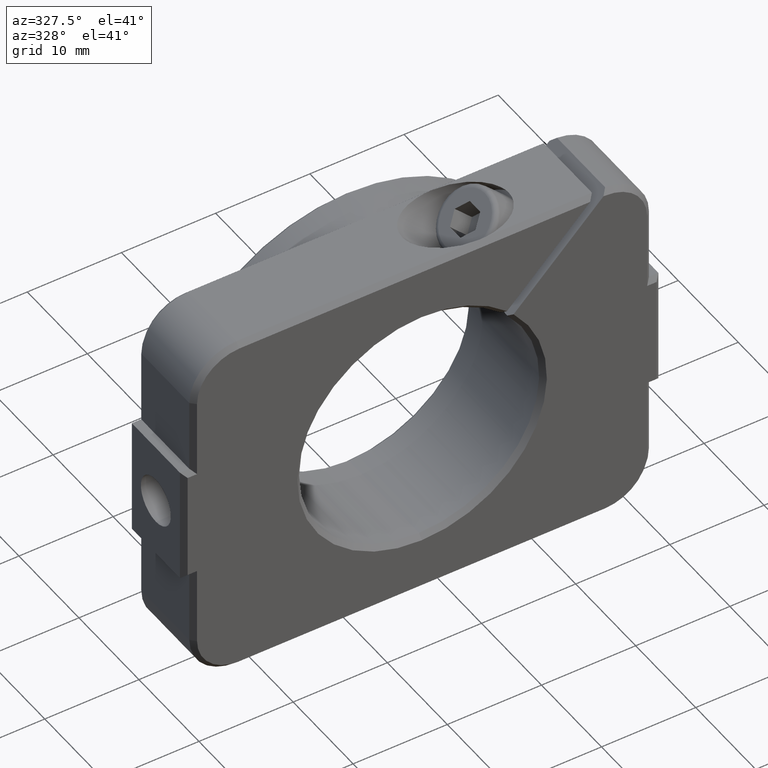
[diagram: clean part render]
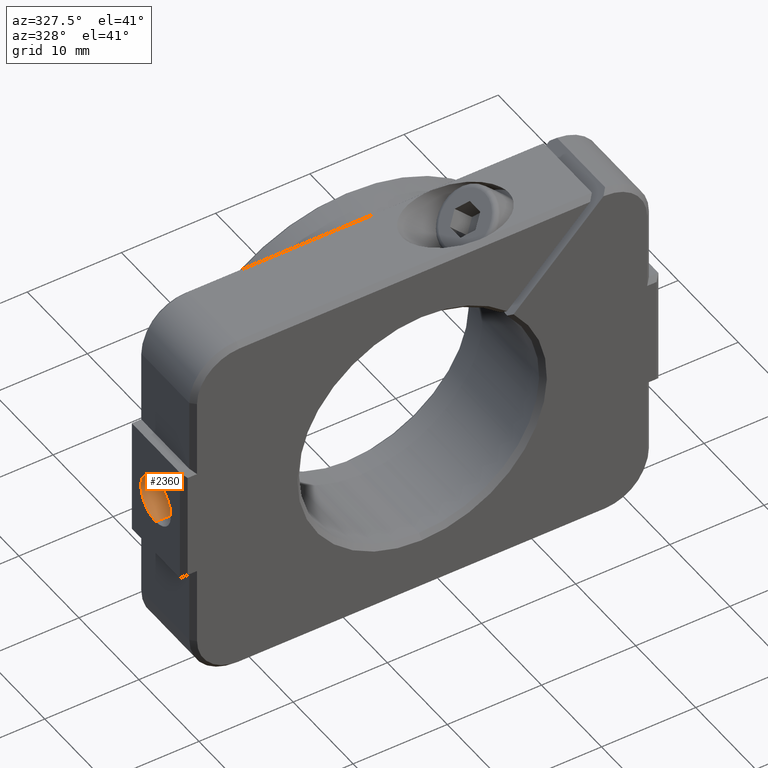
[diagram: same view with one face highlighted and labeled with its STEP entity id]
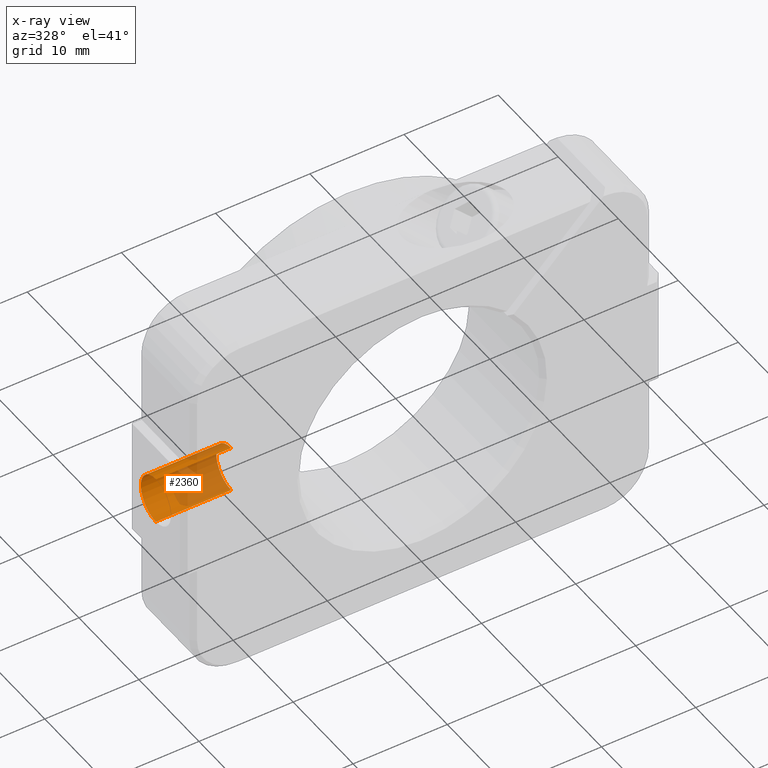
[diagram: x-ray of the same camera — body ghosted, the highlighted face saturated]
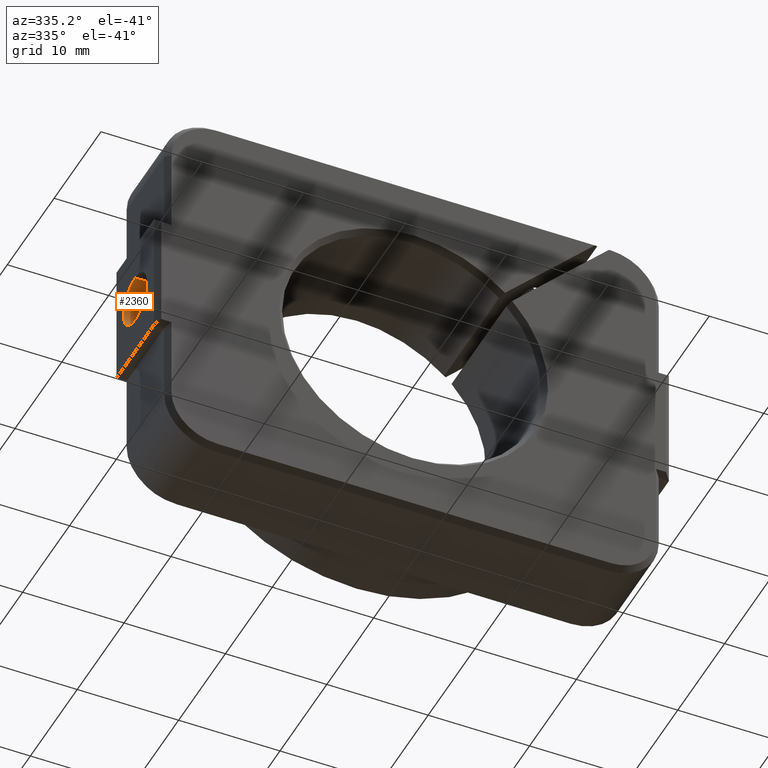
[diagram: same view with one face highlighted and labeled with its STEP entity id]
A machine part, auxiliary view. The second image highlights one B-rep face of the part: STEP entity #2360.
The next image is the same camera in x-ray: the body ghosted, the highlighted face saturated — about 54% of this face is hidden behind the body in this view.
A second angle (auxiliary view) of the same face is appended — the face is thin or edge-on in the first view.
In plain terms, the highlighted cylindrical surface (edge-blend (fillet) strip) has radius 2.5 mm, axis along (-1, -0, -0).
Its self-contained STEP definition (entity closure, byte-faithful):
#62 = ORIENTED_EDGE ( 'NONE', *, *, #832, .F. ) ;
#91 = EDGE_CURVE ( 'NONE', #953, #2815, #1557, .T. ) ;
#172 = EDGE_LOOP ( 'NONE', ( #1456, #62, #2478, #442 ) ) ;
#181 = VERTEX_POINT ( 'NONE', #996 ) ;
#413 = VECTOR ( 'NONE', #2490, 1000.000000000000000 ) ;
#419 = AXIS2_PLACEMENT_3D ( 'NONE', #2588, #1052, #1461 ) ;
#442 = ORIENTED_EDGE ( 'NONE', *, *, #91, .T. ) ;
#502 = DIRECTION ( 'NONE',  ( -1.000000000000000000, -0.0000000000000000000, -0.0000000000000000000 ) ) ;
#538 = FACE_OUTER_BOUND ( 'NONE', #172, .T. ) ;
#543 = LINE ( 'NONE', #1168, #413 ) ;
#695 = CARTESIAN_POINT ( 'NONE',  ( -27.98378581280264000, 0.3462179408826058800, 48.29999999999999700 ) ) ;
#832 = EDGE_CURVE ( 'NONE', #181, #1389, #1829, .T. ) ;
#953 = VERTEX_POINT ( 'NONE', #2252 ) ;
#996 = CARTESIAN_POINT ( 'NONE',  ( -19.98378581280264000, 0.3462179408826055500, 53.29999999999999000 ) ) ;
#1041 = AXIS2_PLACEMENT_3D ( 'NONE', #1910, #2766, #1076 ) ;
#1052 = DIRECTION ( 'NONE',  ( -1.000000000000000000, -0.0000000000000000000, -0.0000000000000000000 ) ) ;
#1076 = DIRECTION ( 'NONE',  ( 0.0000000000000000000, 0.0000000000000000000, 1.000000000000000000 ) ) ;
#1077 = VECTOR ( 'NONE', #1361, 1000.000000000000000 ) ;
#1151 = CARTESIAN_POINT ( 'NONE',  ( -27.98378581280264000, 0.3462179408826055500, 50.79999999999999700 ) ) ;
#1168 = CARTESIAN_POINT ( 'NONE',  ( -27.98378581280264000, 0.3462179408826055500, 53.29999999999999700 ) ) ;
#1240 = CARTESIAN_POINT ( 'NONE',  ( -19.98378581280264000, 0.3462179408826058800, 48.30000000000000400 ) ) ;
#1304 = EDGE_CURVE ( 'NONE', #181, #953, #543, .T. ) ;
#1361 = DIRECTION ( 'NONE',  ( -1.000000000000000000, -0.0000000000000000000, -0.0000000000000000000 ) ) ;
#1389 = VERTEX_POINT ( 'NONE', #1240 ) ;
#1456 = ORIENTED_EDGE ( 'NONE', *, *, #1866, .F. ) ;
#1461 = DIRECTION ( 'NONE',  ( 0.0000000000000000000, 0.0000000000000000000, 1.000000000000000000 ) ) ;
#1557 = CIRCLE ( 'NONE', #2223, 2.500000000000002200 ) ;
#1739 = CYLINDRICAL_SURFACE ( 'NONE', #419, 2.500000000000002200 ) ;
#1811 = LINE ( 'NONE', #695, #1077 ) ;
#1829 = CIRCLE ( 'NONE', #1041, 2.499999999999995100 ) ;
#1866 = EDGE_CURVE ( 'NONE', #1389, #2815, #1811, .T. ) ;
#1910 = CARTESIAN_POINT ( 'NONE',  ( -19.98378581280264000, 0.3462179408826055500, 50.79999999999999700 ) ) ;
#2223 = AXIS2_PLACEMENT_3D ( 'NONE', #1151, #502, #2291 ) ;
#2252 = CARTESIAN_POINT ( 'NONE',  ( -27.98378581280264000, 0.3462179408826055500, 53.29999999999999700 ) ) ;
#2291 = DIRECTION ( 'NONE',  ( 0.0000000000000000000, 0.0000000000000000000, 1.000000000000000000 ) ) ;
#2360 = ADVANCED_FACE ( 'NONE', ( #538 ), #1739, .F. ) ;
#2460 = CARTESIAN_POINT ( 'NONE',  ( -27.98378581280264000, 0.3462179408826058800, 48.29999999999999700 ) ) ;
#2478 = ORIENTED_EDGE ( 'NONE', *, *, #1304, .T. ) ;
#2490 = DIRECTION ( 'NONE',  ( -1.000000000000000000, -0.0000000000000000000, -0.0000000000000000000 ) ) ;
#2588 = CARTESIAN_POINT ( 'NONE',  ( -27.98378581280264000, 0.3462179408826055500, 50.79999999999999700 ) ) ;
#2766 = DIRECTION ( 'NONE',  ( -1.000000000000000000, -0.0000000000000000000, -0.0000000000000000000 ) ) ;
#2815 = VERTEX_POINT ( 'NONE', #2460 ) ;